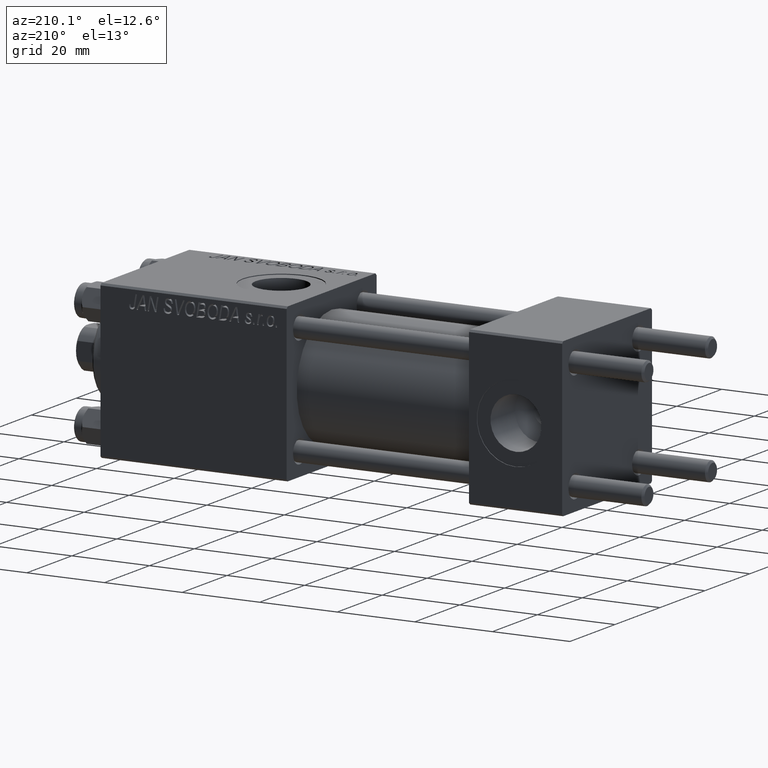
[diagram: clean part render]
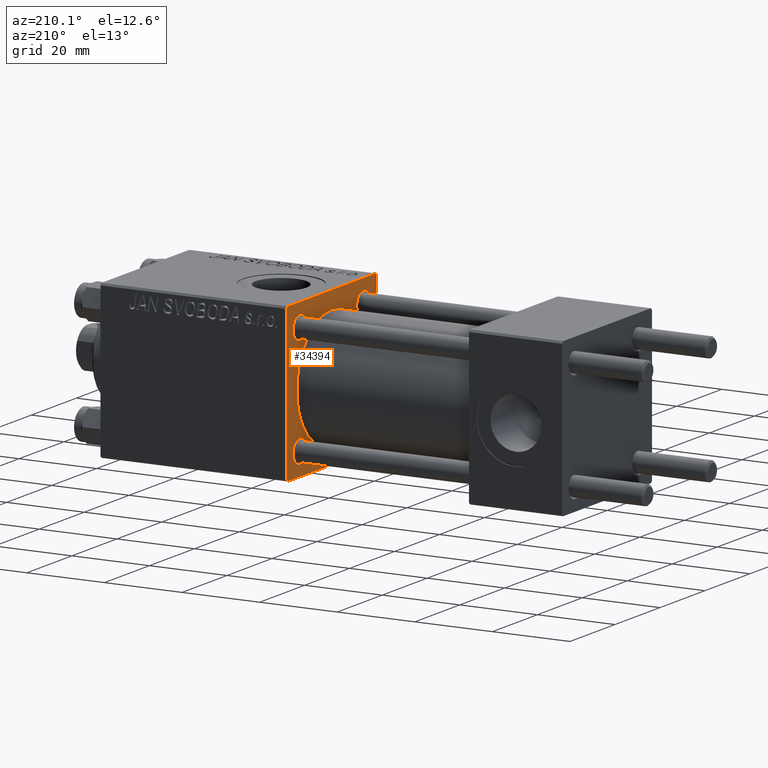
[diagram: same view with one face highlighted and labeled with its STEP entity id]
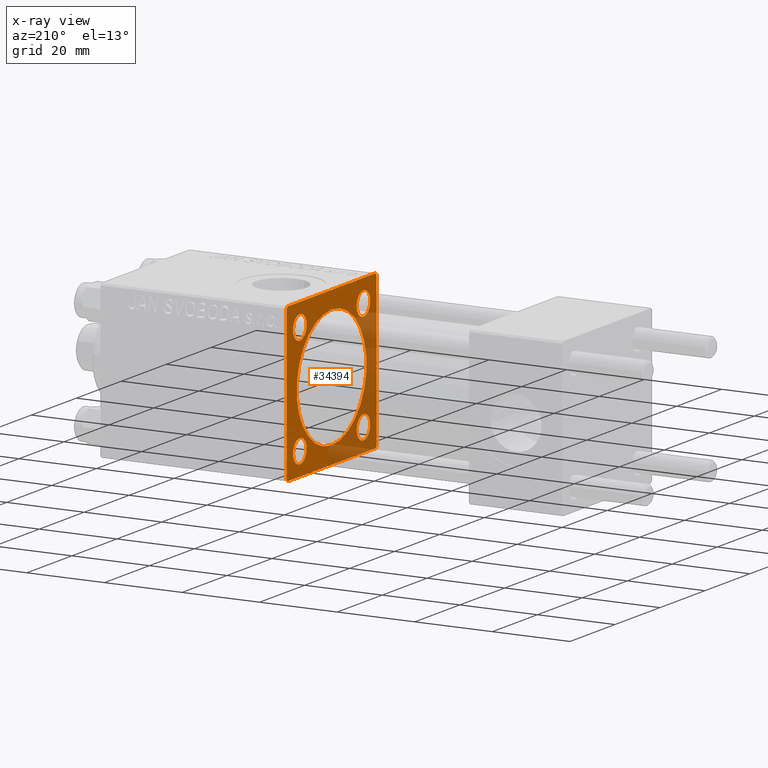
[diagram: x-ray of the same camera — body ghosted, the highlighted face saturated]
A machine part, auxiliary view. The second image highlights one B-rep face of the part: STEP entity #34394.
The next image is the same camera in x-ray: the body ghosted, the highlighted face saturated — about 35% of this face is hidden behind the body in this view.
In plain terms, the highlighted planar face has unit normal (-1, 0, 0).
Its self-contained STEP definition (entity closure, byte-faithful):
#189 = DIRECTION ( 'NONE',  ( 1.000000000000000000, 0.000000000000000000, 0.000000000000000000 ) ) ;
#478 = ORIENTED_EDGE ( 'NONE', *, *, #24515, .T. ) ;
#1140 = VERTEX_POINT ( 'NONE', #4794 ) ;
#1436 = DIRECTION ( 'NONE',  ( 0.000000000000000000, 0.000000000000000000, 1.000000000000000000 ) ) ;
#1454 = DIRECTION ( 'NONE',  ( -0.000000000000000000, 0.7071067811865573427, 0.7071067811865376918 ) ) ;
#1907 = AXIS2_PLACEMENT_3D ( 'NONE', #28625, #24853, #11191 ) ;
#2262 = VECTOR ( 'NONE', #49081, 1000.000000000000000 ) ;
#2705 = LINE ( 'NONE', #41571, #4076 ) ;
#3991 = FACE_BOUND ( 'NONE', #20884, .T. ) ;
#4076 = VECTOR ( 'NONE', #22625, 1000.000000000000114 ) ;
#4242 = DIRECTION ( 'NONE',  ( 0.000000000000000000, 0.000000000000000000, 1.000000000000000000 ) ) ;
#4719 = DIRECTION ( 'NONE',  ( 0.000000000000000000, 0.000000000000000000, 1.000000000000000000 ) ) ;
#4721 = ORIENTED_EDGE ( 'NONE', *, *, #6020, .T. ) ;
#4794 = CARTESIAN_POINT ( 'NONE',  ( 71.00000000000001421, 14.15000000000000036, 11.14999999999999858 ) ) ;
#4988 = VECTOR ( 'NONE', #13670, 999.9999999999998863 ) ;
#5982 = CARTESIAN_POINT ( 'NONE',  ( 71.00000000000001421, -19.50000000000001776, 19.99999999999999645 ) ) ;
#6020 = EDGE_CURVE ( 'NONE', #37424, #9380, #21102, .T. ) ;
#6237 = DIRECTION ( 'NONE',  ( 0.000000000000000000, 0.000000000000000000, -1.000000000000000000 ) ) ;
#6597 = EDGE_CURVE ( 'NONE', #9380, #37424, #38025, .T. ) ;
#6602 = CIRCLE ( 'NONE', #34797, 15.50000000000000000 ) ;
#6998 = LINE ( 'NONE', #32835, #4988 ) ;
#7074 = VECTOR ( 'NONE', #30312, 999.9999999999998863 ) ;
#8133 = CARTESIAN_POINT ( 'NONE',  ( 71.00000000000001421, 19.99999999999999645, 20.00000000000000000 ) ) ;
#8453 = EDGE_LOOP ( 'NONE', ( #45469, #44930 ) ) ;
#9023 = AXIS2_PLACEMENT_3D ( 'NONE', #17855, #18101, #6237 ) ;
#9380 = VERTEX_POINT ( 'NONE', #48966 ) ;
#10004 = CIRCLE ( 'NONE', #23711, 3.000000000000000888 ) ;
#10493 = VERTEX_POINT ( 'NONE', #22029 ) ;
#10837 = DIRECTION ( 'NONE',  ( -0.000000000000000000, 0.000000000000000000, 1.000000000000000000 ) ) ;
#10966 = LINE ( 'NONE', #38212, #2262 ) ;
#11159 = DIRECTION ( 'NONE',  ( 0.000000000000000000, 0.000000000000000000, 1.000000000000000000 ) ) ;
#11191 = DIRECTION ( 'NONE',  ( 0.000000000000000000, 0.000000000000000000, 1.000000000000000000 ) ) ;
#11410 = DIRECTION ( 'NONE',  ( 1.000000000000000000, 0.000000000000000000, 0.000000000000000000 ) ) ;
#12035 = CARTESIAN_POINT ( 'NONE',  ( 71.00000000000001421, -14.15000000000000036, 14.15000000000000036 ) ) ;
#12079 = CARTESIAN_POINT ( 'NONE',  ( 71.00000000000001421, 14.15000000000000036, -14.15000000000000036 ) ) ;
#12223 = CARTESIAN_POINT ( 'NONE',  ( 71.00000000000001421, -14.15000000000000036, 17.15000000000000568 ) ) ;
#12677 = AXIS2_PLACEMENT_3D ( 'NONE', #15750, #30881, #46302 ) ;
#12816 = CIRCLE ( 'NONE', #41021, 2.999999999999976463 ) ;
#13486 = CIRCLE ( 'NONE', #41687, 3.000000000000004441 ) ;
#13670 = DIRECTION ( 'NONE',  ( 0.000000000000000000, 0.7071067811865574537, -0.7071067811865376918 ) ) ;
#13892 = CARTESIAN_POINT ( 'NONE',  ( 71.00000000000001421, -20.00000000000000000, -19.50000000000001066 ) ) ;
#14585 = EDGE_LOOP ( 'NONE', ( #41169, #4721 ) ) ;
#15086 = AXIS2_PLACEMENT_3D ( 'NONE', #24986, #17175, #39893 ) ;
#15113 = DIRECTION ( 'NONE',  ( -1.000000000000000000, 0.000000000000000000, -0.000000000000000000 ) ) ;
#15391 = ORIENTED_EDGE ( 'NONE', *, *, #25463, .T. ) ;
#15750 = CARTESIAN_POINT ( 'NONE',  ( 71.00000000000001421, 14.15000000000000036, 14.15000000000000036 ) ) ;
#15781 = VERTEX_POINT ( 'NONE', #29977 ) ;
#16057 = VERTEX_POINT ( 'NONE', #5982 ) ;
#16277 = AXIS2_PLACEMENT_3D ( 'NONE', #12079, #34784, #27462 ) ;
#16463 = VERTEX_POINT ( 'NONE', #27252 ) ;
#16610 = LINE ( 'NONE', #43886, #17507 ) ;
#17175 = DIRECTION ( 'NONE',  ( 1.000000000000000000, 0.000000000000000000, 0.000000000000000000 ) ) ;
#17507 = VECTOR ( 'NONE', #1454, 1000.000000000000114 ) ;
#17831 = ORIENTED_EDGE ( 'NONE', *, *, #24834, .T. ) ;
#17855 = CARTESIAN_POINT ( 'NONE',  ( 71.00000000000001421, 0.000000000000000000, 0.000000000000000000 ) ) ;
#18101 = DIRECTION ( 'NONE',  ( 1.000000000000000000, 0.000000000000000000, 0.000000000000000000 ) ) ;
#18139 = CARTESIAN_POINT ( 'NONE',  ( 71.00000000000001421, -14.15000000000000036, 11.14999999999999858 ) ) ;
#18985 = CARTESIAN_POINT ( 'NONE',  ( 71.00000000000001421, 0.000000000000000000, 0.000000000000000000 ) ) ;
#19249 = LINE ( 'NONE', #8133, #48152 ) ;
#19509 = CIRCLE ( 'NONE', #9023, 15.50000000000000000 ) ;
#19868 = DIRECTION ( 'NONE',  ( 1.000000000000000000, 0.000000000000000000, 0.000000000000000000 ) ) ;
#19891 = CARTESIAN_POINT ( 'NONE',  ( 71.00000000000001421, 0.000000000000000000, 15.50000000000000000 ) ) ;
#19983 = EDGE_CURVE ( 'NONE', #36895, #27561, #13486, .T. ) ;
#20024 = EDGE_CURVE ( 'NONE', #22830, #16057, #19249, .T. ) ;
#20884 = EDGE_LOOP ( 'NONE', ( #29168, #21101 ) ) ;
#20885 = EDGE_CURVE ( 'NONE', #27561, #36895, #43827, .T. ) ;
#20887 = CARTESIAN_POINT ( 'NONE',  ( 71.00000000000001421, -19.50000000000002487, -20.00000000000000000 ) ) ;
#21101 = ORIENTED_EDGE ( 'NONE', *, *, #41126, .T. ) ;
#21102 = CIRCLE ( 'NONE', #42870, 2.999999999999976463 ) ;
#21125 = DIRECTION ( 'NONE',  ( 1.000000000000000000, 0.000000000000000000, 0.000000000000000000 ) ) ;
#21751 = EDGE_CURVE ( 'NONE', #16463, #23771, #43129, .T. ) ;
#22029 = CARTESIAN_POINT ( 'NONE',  ( 71.00000000000001421, 19.99999999999999645, -19.50000000000000000 ) ) ;
#22225 = ORIENTED_EDGE ( 'NONE', *, *, #32223, .T. ) ;
#22395 = EDGE_CURVE ( 'NONE', #42850, #15781, #40887, .T. ) ;
#22625 = DIRECTION ( 'NONE',  ( -0.000000000000000000, -0.7071067811865474617, -0.7071067811865474617 ) ) ;
#22679 = FACE_BOUND ( 'NONE', #8453, .T. ) ;
#22781 = EDGE_CURVE ( 'NONE', #16463, #16057, #16610, .T. ) ;
#22830 = VERTEX_POINT ( 'NONE', #36789 ) ;
#22880 = CARTESIAN_POINT ( 'NONE',  ( 71.00000000000001421, 19.99999999999999645, 20.00000000000000000 ) ) ;
#23242 = ORIENTED_EDGE ( 'NONE', *, *, #22781, .T. ) ;
#23711 = AXIS2_PLACEMENT_3D ( 'NONE', #47645, #21125, #1436 ) ;
#23771 = VERTEX_POINT ( 'NONE', #13892 ) ;
#24140 = ORIENTED_EDGE ( 'NONE', *, *, #20024, .F. ) ;
#24515 = EDGE_CURVE ( 'NONE', #42161, #43165, #10966, .T. ) ;
#24834 = EDGE_CURVE ( 'NONE', #43165, #23771, #26045, .T. ) ;
#24853 = DIRECTION ( 'NONE',  ( 1.000000000000000000, 0.000000000000000000, 0.000000000000000000 ) ) ;
#24986 = CARTESIAN_POINT ( 'NONE',  ( 71.00000000000001421, -14.15000000000000036, -14.15000000000000036 ) ) ;
#25024 = AXIS2_PLACEMENT_3D ( 'NONE', #34773, #15113, #10837 ) ;
#25152 = ORIENTED_EDGE ( 'NONE', *, *, #47654, .T. ) ;
#25463 = EDGE_CURVE ( 'NONE', #43759, #1140, #31172, .T. ) ;
#26045 = LINE ( 'NONE', #41451, #7074 ) ;
#27023 = ORIENTED_EDGE ( 'NONE', *, *, #22395, .T. ) ;
#27111 = VERTEX_POINT ( 'NONE', #35893 ) ;
#27252 = CARTESIAN_POINT ( 'NONE',  ( 71.00000000000001421, -20.00000000000000355, 19.50000000000002487 ) ) ;
#27462 = DIRECTION ( 'NONE',  ( 0.000000000000000000, 0.000000000000000000, 1.000000000000000000 ) ) ;
#27561 = VERTEX_POINT ( 'NONE', #18139 ) ;
#28063 = DIRECTION ( 'NONE',  ( 0.000000000000000000, -1.000000000000000000, -8.673617379884035472E-17 ) ) ;
#28625 = CARTESIAN_POINT ( 'NONE',  ( 71.00000000000001421, -14.15000000000000036, 14.15000000000000036 ) ) ;
#29168 = ORIENTED_EDGE ( 'NONE', *, *, #37880, .T. ) ;
#29880 = ORIENTED_EDGE ( 'NONE', *, *, #21751, .F. ) ;
#29977 = CARTESIAN_POINT ( 'NONE',  ( 71.00000000000001421, -14.15000000000000036, -17.14999999999997726 ) ) ;
#29998 = PLANE ( 'NONE',  #25024 ) ;
#30312 = DIRECTION ( 'NONE',  ( 0.000000000000000000, -0.7071067811865376918, 0.7071067811865574537 ) ) ;
#30729 = EDGE_CURVE ( 'NONE', #15781, #42850, #12816, .T. ) ;
#30881 = DIRECTION ( 'NONE',  ( 1.000000000000000000, 0.000000000000000000, 0.000000000000000000 ) ) ;
#31100 = CARTESIAN_POINT ( 'NONE',  ( 71.00000000000001421, 1.898202538678397557E-15, -15.50000000000000000 ) ) ;
#31172 = CIRCLE ( 'NONE', #12677, 3.000000000000000888 ) ;
#31743 = CARTESIAN_POINT ( 'NONE',  ( 71.00000000000001421, -20.00000000000000355, 19.99999999999999645 ) ) ;
#31745 = CARTESIAN_POINT ( 'NONE',  ( 71.00000000000001421, -14.15000000000000036, -14.15000000000000036 ) ) ;
#32223 = EDGE_CURVE ( 'NONE', #27111, #10493, #37539, .T. ) ;
#32556 = CARTESIAN_POINT ( 'NONE',  ( 71.00000000000001421, -14.15000000000000036, -11.15000000000002522 ) ) ;
#32835 = CARTESIAN_POINT ( 'NONE',  ( 71.00000000000001421, 19.74999999999971578, 19.75000000000026290 ) ) ;
#34281 = FACE_BOUND ( 'NONE', #36690, .T. ) ;
#34394 = ADVANCED_FACE ( 'NONE', ( #22679, #41622, #45664, #34281, #3991, #37824 ), #29998, .T. ) ;
#34584 = ORIENTED_EDGE ( 'NONE', *, *, #30729, .T. ) ;
#34728 = EDGE_CURVE ( 'NONE', #10493, #42161, #2705, .T. ) ;
#34763 = DIRECTION ( 'NONE',  ( 0.000000000000000000, 8.673617379884036705E-17, -1.000000000000000000 ) ) ;
#34773 = CARTESIAN_POINT ( 'NONE',  ( 71.00000000000001421, 0.000000000000000000, 0.000000000000000000 ) ) ;
#34784 = DIRECTION ( 'NONE',  ( 1.000000000000000000, 0.000000000000000000, 0.000000000000000000 ) ) ;
#34797 = AXIS2_PLACEMENT_3D ( 'NONE', #18985, #11410, #46495 ) ;
#35262 = EDGE_LOOP ( 'NONE', ( #15391, #25152 ) ) ;
#35893 = CARTESIAN_POINT ( 'NONE',  ( 71.00000000000001421, 19.99999999999999645, 19.49999999999998579 ) ) ;
#36690 = EDGE_LOOP ( 'NONE', ( #27023, #34584 ) ) ;
#36789 = CARTESIAN_POINT ( 'NONE',  ( 71.00000000000001421, 19.49999999999996803, 20.00000000000000000 ) ) ;
#36895 = VERTEX_POINT ( 'NONE', #12223 ) ;
#37424 = VERTEX_POINT ( 'NONE', #43584 ) ;
#37539 = LINE ( 'NONE', #22880, #41091 ) ;
#37720 = ORIENTED_EDGE ( 'NONE', *, *, #38190, .T. ) ;
#37824 = FACE_OUTER_BOUND ( 'NONE', #44844, .T. ) ;
#37880 = EDGE_CURVE ( 'NONE', #40143, #39848, #6602, .T. ) ;
#38025 = CIRCLE ( 'NONE', #16277, 2.999999999999976463 ) ;
#38190 = EDGE_CURVE ( 'NONE', #22830, #27111, #6998, .T. ) ;
#38212 = CARTESIAN_POINT ( 'NONE',  ( 71.00000000000001421, 19.99999999999999645, -20.00000000000000000 ) ) ;
#39644 = CARTESIAN_POINT ( 'NONE',  ( 71.00000000000001421, 14.15000000000000036, 17.15000000000000568 ) ) ;
#39848 = VERTEX_POINT ( 'NONE', #31100 ) ;
#39893 = DIRECTION ( 'NONE',  ( 0.000000000000000000, 0.000000000000000000, 1.000000000000000000 ) ) ;
#40143 = VERTEX_POINT ( 'NONE', #19891 ) ;
#40887 = CIRCLE ( 'NONE', #15086, 2.999999999999976463 ) ;
#41021 = AXIS2_PLACEMENT_3D ( 'NONE', #31745, #189, #4242 ) ;
#41091 = VECTOR ( 'NONE', #49649, 1000.000000000000000 ) ;
#41126 = EDGE_CURVE ( 'NONE', #39848, #40143, #19509, .T. ) ;
#41169 = ORIENTED_EDGE ( 'NONE', *, *, #6597, .T. ) ;
#41451 = CARTESIAN_POINT ( 'NONE',  ( 71.00000000000001421, -19.75000000000028066, -19.74999999999973355 ) ) ;
#41571 = CARTESIAN_POINT ( 'NONE',  ( 71.00000000000001421, 19.74999999999999645, -19.74999999999999645 ) ) ;
#41622 = FACE_BOUND ( 'NONE', #35262, .T. ) ;
#41627 = CARTESIAN_POINT ( 'NONE',  ( 71.00000000000001421, 19.49999999999999645, -20.00000000000000000 ) ) ;
#41687 = AXIS2_PLACEMENT_3D ( 'NONE', #12035, #19868, #4719 ) ;
#42161 = VERTEX_POINT ( 'NONE', #41627 ) ;
#42850 = VERTEX_POINT ( 'NONE', #32556 ) ;
#42870 = AXIS2_PLACEMENT_3D ( 'NONE', #45508, #45255, #11159 ) ;
#43129 = LINE ( 'NONE', #31743, #44893 ) ;
#43165 = VERTEX_POINT ( 'NONE', #20887 ) ;
#43584 = CARTESIAN_POINT ( 'NONE',  ( 71.00000000000001421, 14.15000000000000036, -17.14999999999997726 ) ) ;
#43759 = VERTEX_POINT ( 'NONE', #39644 ) ;
#43827 = CIRCLE ( 'NONE', #1907, 3.000000000000004441 ) ;
#43886 = CARTESIAN_POINT ( 'NONE',  ( 71.00000000000001421, -19.74999999999973710, 19.75000000000028422 ) ) ;
#44844 = EDGE_LOOP ( 'NONE', ( #478, #17831, #29880, #23242, #24140, #37720, #22225, #48476 ) ) ;
#44893 = VECTOR ( 'NONE', #34763, 1000.000000000000000 ) ;
#44930 = ORIENTED_EDGE ( 'NONE', *, *, #20885, .T. ) ;
#45255 = DIRECTION ( 'NONE',  ( 1.000000000000000000, 0.000000000000000000, 0.000000000000000000 ) ) ;
#45469 = ORIENTED_EDGE ( 'NONE', *, *, #19983, .T. ) ;
#45508 = CARTESIAN_POINT ( 'NONE',  ( 71.00000000000001421, 14.15000000000000036, -14.15000000000000036 ) ) ;
#45664 = FACE_BOUND ( 'NONE', #14585, .T. ) ;
#46302 = DIRECTION ( 'NONE',  ( 0.000000000000000000, 0.000000000000000000, 1.000000000000000000 ) ) ;
#46495 = DIRECTION ( 'NONE',  ( 0.000000000000000000, 0.000000000000000000, -1.000000000000000000 ) ) ;
#47645 = CARTESIAN_POINT ( 'NONE',  ( 71.00000000000001421, 14.15000000000000036, 14.15000000000000036 ) ) ;
#47654 = EDGE_CURVE ( 'NONE', #1140, #43759, #10004, .T. ) ;
#48152 = VECTOR ( 'NONE', #28063, 1000.000000000000000 ) ;
#48476 = ORIENTED_EDGE ( 'NONE', *, *, #34728, .T. ) ;
#48966 = CARTESIAN_POINT ( 'NONE',  ( 71.00000000000001421, 14.15000000000000036, -11.15000000000002522 ) ) ;
#49081 = DIRECTION ( 'NONE',  ( 0.000000000000000000, -1.000000000000000000, 0.000000000000000000 ) ) ;
#49649 = DIRECTION ( 'NONE',  ( 0.000000000000000000, 0.000000000000000000, -1.000000000000000000 ) ) ;